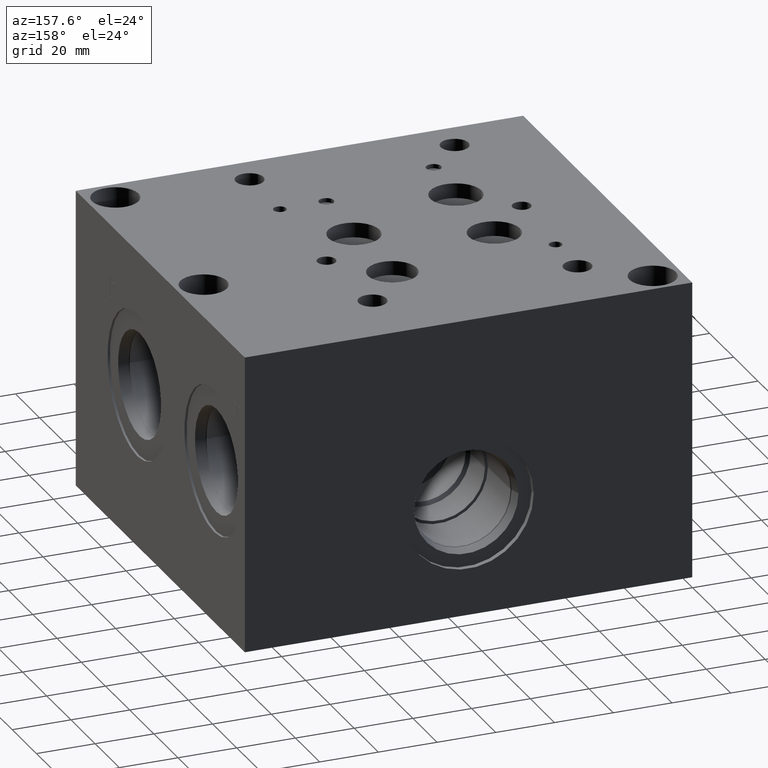
[diagram: clean part render]
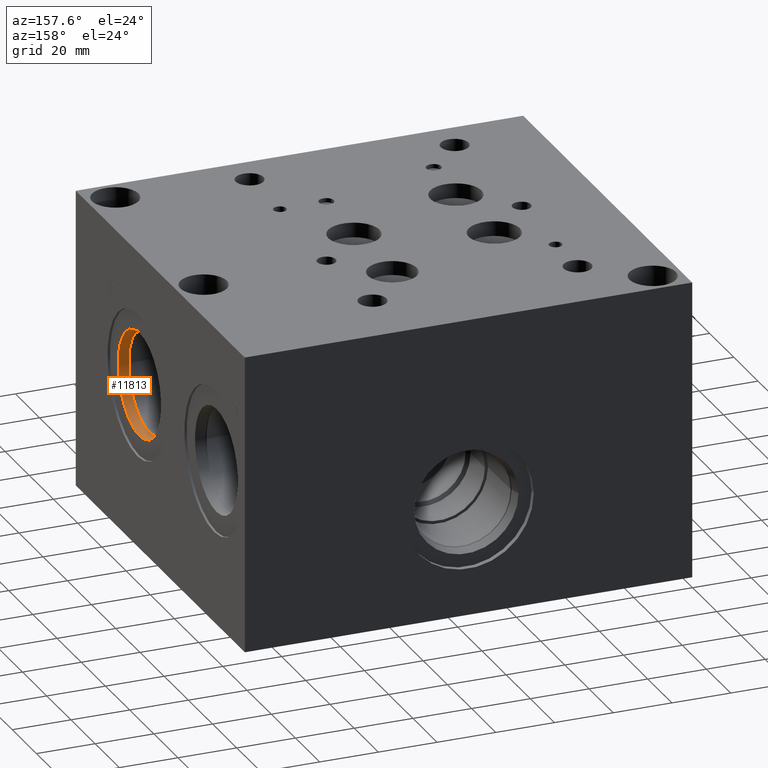
[diagram: same view with one face highlighted and labeled with its STEP entity id]
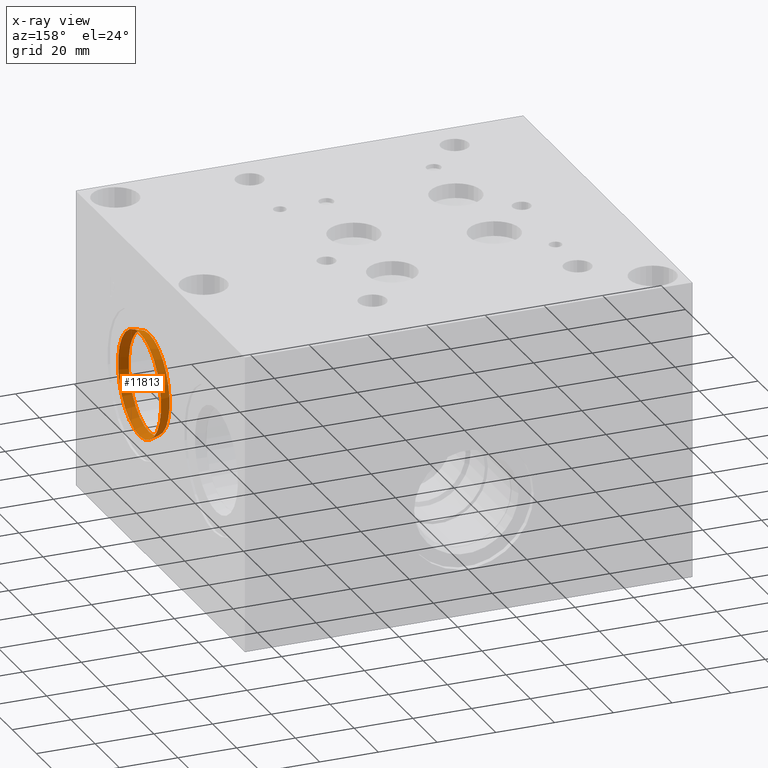
[diagram: x-ray of the same camera — body ghosted, the highlighted face saturated]
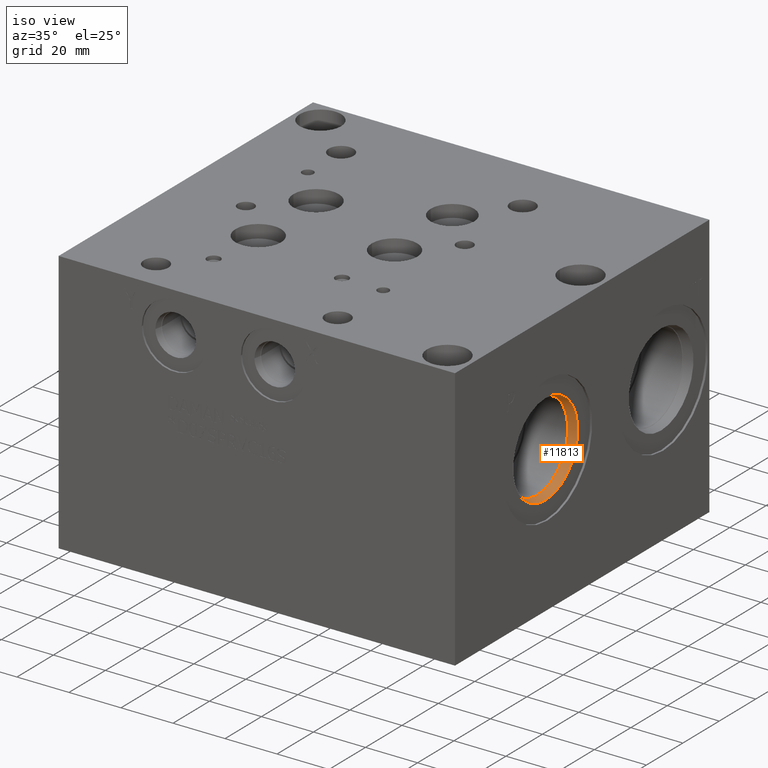
[diagram: same view with one face highlighted and labeled with its STEP entity id]
A machine part, auxiliary view. The second image highlights one B-rep face of the part: STEP entity #11813.
The next image is the same camera in x-ray: the body ghosted, the highlighted face saturated — about 0% of this face is hidden behind the body in this view.
A second angle (iso view) of the same face is appended — the face is thin or edge-on in the first view.
In plain terms, the highlighted conical surface has half-angle 15 deg.
Its self-contained STEP definition (entity closure, byte-faithful):
#30=CONICAL_SURFACE('',#12384,17.31645,0.261799389532319);
#226=CIRCLE('',#12382,17.7546);
#227=CIRCLE('',#12383,17.7546);
#228=CIRCLE('',#12385,16.8783);
#229=CIRCLE('',#12386,16.8783);
#1350=FACE_OUTER_BOUND('',#2018,.T.);
#2018=EDGE_LOOP('',(#10121,#10122,#10123,#10124,#10125,#10126));
#3171=LINE('',#19983,#4260);
#4260=VECTOR('',#14569,17.31645);
#5566=VERTEX_POINT('',#19977);
#5567=VERTEX_POINT('',#19978);
#5568=VERTEX_POINT('',#19982);
#5569=VERTEX_POINT('',#19984);
#7146=EDGE_CURVE('',#5566,#5567,#226,.T.);
#7147=EDGE_CURVE('',#5567,#5566,#227,.T.);
#7148=EDGE_CURVE('',#5567,#5568,#3171,.T.);
#7149=EDGE_CURVE('',#5568,#5569,#228,.T.);
#7150=EDGE_CURVE('',#5569,#5568,#229,.T.);
#10121=ORIENTED_EDGE('',*,*,#7146,.F.);
#10122=ORIENTED_EDGE('',*,*,#7147,.F.);
#10123=ORIENTED_EDGE('',*,*,#7148,.T.);
#10124=ORIENTED_EDGE('',*,*,#7149,.T.);
#10125=ORIENTED_EDGE('',*,*,#7150,.T.);
#10126=ORIENTED_EDGE('',*,*,#7148,.F.);
#11813=ADVANCED_FACE('',(#1350),#30,.F.);
#12382=AXIS2_PLACEMENT_3D('',#19979,#14563,#14564);
#12383=AXIS2_PLACEMENT_3D('',#19980,#14565,#14566);
#12384=AXIS2_PLACEMENT_3D('',#19981,#14567,#14568);
#12385=AXIS2_PLACEMENT_3D('',#19985,#14570,#14571);
#12386=AXIS2_PLACEMENT_3D('',#19986,#14572,#14573);
#14563=DIRECTION('center_axis',(-1.,0.,0.));
#14564=DIRECTION('ref_axis',(0.,0.,1.));
#14565=DIRECTION('center_axis',(-1.,0.,0.));
#14566=DIRECTION('ref_axis',(0.,0.,1.));
#14567=DIRECTION('center_axis',(1.,0.,0.));
#14568=DIRECTION('ref_axis',(0.,0.,-1.));
#14569=DIRECTION('',(-0.965925825840491,-3.16961917193374E-17,-0.258819046776634));
#14570=DIRECTION('center_axis',(-1.,0.,0.));
#14571=DIRECTION('ref_axis',(0.,0.,1.));
#14572=DIRECTION('center_axis',(-1.,0.,0.));
#14573=DIRECTION('ref_axis',(0.,0.,1.));
#19977=CARTESIAN_POINT('',(151.6126,50.8,37.8206));
#19978=CARTESIAN_POINT('',(151.6126,50.8,73.3298));
#19979=CARTESIAN_POINT('Origin',(151.6126,50.8,55.5752));
#19980=CARTESIAN_POINT('Origin',(151.6126,50.8,55.5752));
#19981=CARTESIAN_POINT('Origin',(149.97740195,50.8,55.5752));
#19982=CARTESIAN_POINT('',(148.3422039,50.8,72.4535));
#19983=CARTESIAN_POINT('',(149.97740195,50.8,72.89165));
#19984=CARTESIAN_POINT('',(148.3422039,50.8,38.6969));
#19985=CARTESIAN_POINT('Origin',(148.3422039,50.8,55.5752));
#19986=CARTESIAN_POINT('Origin',(148.3422039,50.8,55.5752));